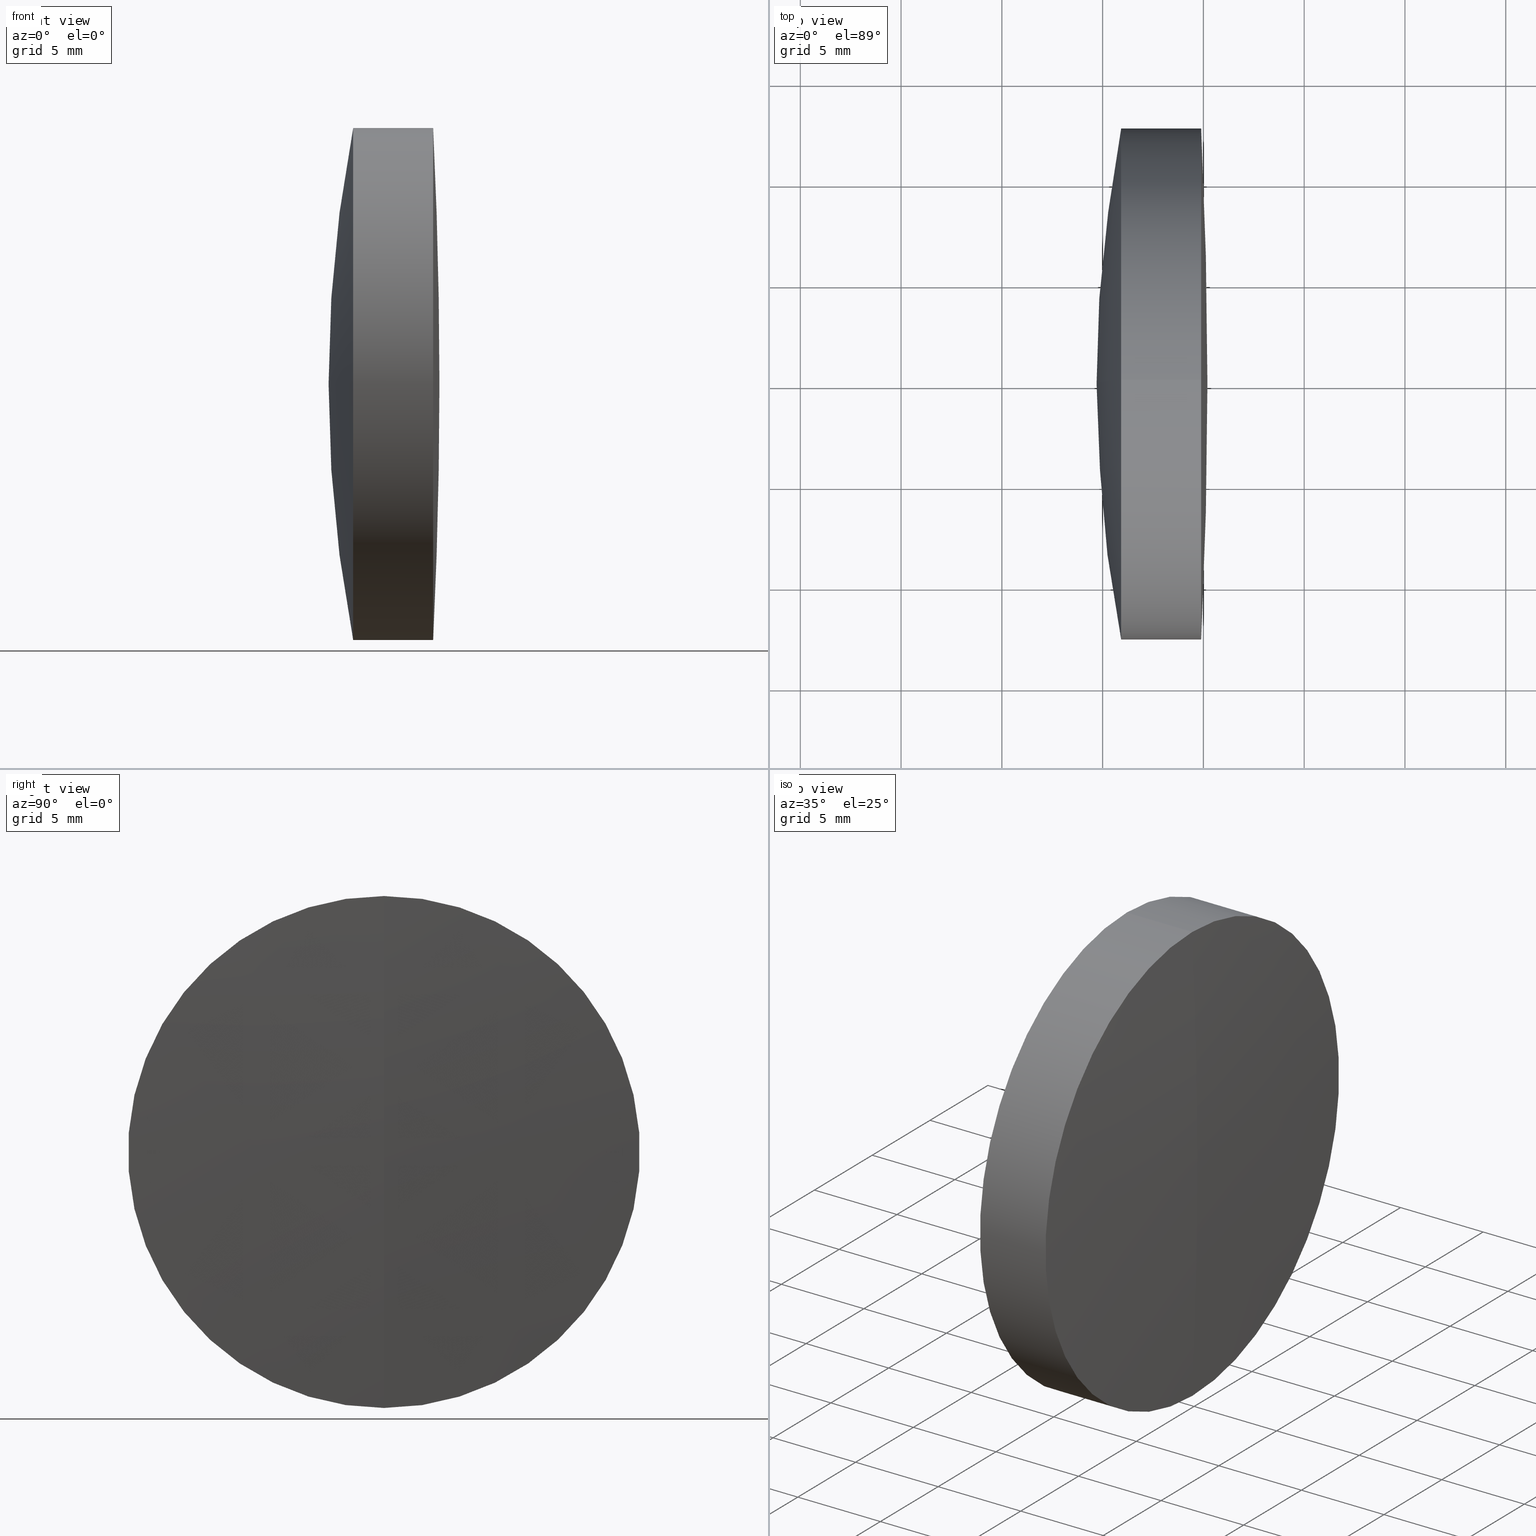
[diagram: canonical four-view strip — front | top / right | iso, engineering-drawing reading convention]
A machine part, canonical four-view strip (front | top / right | iso — engineering-drawing reading convention). The complete STEP part file that produces these views, byte-faithful:
ISO-10303-21;
HEADER;
FILE_DESCRIPTION (( 'STEP AP214' ),
    '1' );
FILE_NAME ('145122.STEP',
    '2019-06-03T02:42:32',
    ( 'user' ),
    ( '΢���й�' ),
    'SwSTEP 2.0',
    'SolidWorks 2016',
    '' );
FILE_SCHEMA (( 'AUTOMOTIVE_DESIGN' ));
ENDSEC;

DATA;
#1 =( NAMED_UNIT ( * ) PLANE_ANGLE_UNIT ( ) SI_UNIT ( $, .RADIAN. ) );
#2 = SPHERICAL_SURFACE ( 'NONE', #199, 66.67999999999999300 ) ;
#3 = SURFACE_STYLE_USAGE ( .BOTH. , #324 ) ;
#4 = SURFACE_SIDE_STYLE ('',( #178 ) ) ;
#5 = FILL_AREA_STYLE_COLOUR ( '', #17 ) ;
#6 = ORIENTED_EDGE ( 'NONE', *, *, #222, .F. ) ;
#7 = CARTESIAN_POINT ( 'NONE',  ( 45.79012593811276600, 0.0000000000000000000, 0.0000000000000000000 ) ) ;
#8 = EDGE_CURVE ( 'NONE', #9, #41, #281, .T. ) ;
#9 = VERTEX_POINT ( 'NONE', #212 ) ;
#10 = CARTESIAN_POINT ( 'NONE',  ( 45.79012593811276600, 0.0000000000000000000, 0.0000000000000000000 ) ) ;
#11 = CARTESIAN_POINT ( 'NONE',  ( 250.0001259381127700, 0.0000000000000000000, 6.763720156497999700E-015 ) ) ;
#12 = CIRCLE ( 'NONE', #332, 12.70000000000000600 ) ;
#13 = APPLICATION_PROTOCOL_DEFINITION ( 'draft international standard', 'automotive_design', 1998, #305 ) ;
#14 = DIRECTION ( 'NONE',  ( 0.0000000000000000000, -1.224646799147353200E-016, 1.000000000000000000 ) ) ;
#15 = DIRECTION ( 'NONE',  ( 0.0000000000000000000, 0.0000000000000000000, 1.000000000000000000 ) ) ;
#16 = DIRECTION ( 'NONE',  ( 0.0000000000000000000, 0.0000000000000000000, 1.000000000000000000 ) ) ;
#17 = COLOUR_RGB ( '',1.000000000000000000, 1.000000000000000000, 1.000000000000000000 ) ;
#18 = STYLED_ITEM ( 'NONE', ( #290 ), #308 ) ;
#19 = CIRCLE ( 'NONE', #162, 12.70000000000000600 ) ;
#20 = ADVANCED_FACE ( 'NONE', ( #84 ), #298, .F. ) ;
#21 = EDGE_CURVE ( 'NONE', #191, #80, #323, .T. ) ;
#22 = CARTESIAN_POINT ( 'NONE',  ( 303.7001259381128200, 0.0000000000000000000, 1.005189681220864300E-014 ) ) ;
#23 = ADVANCED_FACE ( 'NONE', ( #91 ), #252, .T. ) ;
#24 = DIRECTION ( 'NONE',  ( -1.000000000000000000, -0.0000000000000000000, -0.0000000000000000000 ) ) ;
#25 = FACE_OUTER_BOUND ( 'NONE', #94, .T. ) ;
#26 = DIRECTION ( 'NONE',  ( 0.0000000000000000000, -1.000000000000000000, 0.0000000000000000000 ) ) ;
#27 = UNCERTAINTY_MEASURE_WITH_UNIT (LENGTH_MEASURE( 1.000000000000000100E-005 ), #103, 'distance_accuracy_value', 'NONE');
#28 = DIRECTION ( 'NONE',  ( 0.0000000000000000000, 0.0000000000000000000, 1.000000000000000000 ) ) ;
#29 = ORIENTED_EDGE ( 'NONE', *, *, #202, .T. ) ;
#30 = DIRECTION ( 'NONE',  ( 0.0000000000000000000, -1.224646799147353200E-016, 1.000000000000000000 ) ) ;
#31 = DIRECTION ( 'NONE',  ( 0.0000000000000000000, 0.0000000000000000000, -1.000000000000000000 ) ) ;
#32 = VERTEX_POINT ( 'NONE', #22 ) ;
#33 = DIRECTION ( 'NONE',  ( 0.0000000000000000000, 1.000000000000000000, 0.0000000000000000000 ) ) ;
#34 = EDGE_LOOP ( 'NONE', ( #223, #261, #69 ) ) ;
#35 = CIRCLE ( 'NONE', #297, 12.70000000000000600 ) ;
#36 = PRESENTATION_LAYER_ASSIGNMENT (  '', '', ( #18 ) ) ;
#37 = VERTEX_POINT ( 'NONE', #98 ) ;
#38 = CARTESIAN_POINT ( 'NONE',  ( 299.7001259381128200, 0.0000000000000000000, 2.776124129692395000E-015 ) ) ;
#39 = CARTESIAN_POINT ( 'NONE',  ( 302.1767490561337600, 0.0000000000000000000, 12.70000000000000600 ) ) ;
#40 = EDGE_CURVE ( 'NONE', #201, #286, #165, .T. ) ;
#41 = VERTEX_POINT ( 'NONE', #43 ) ;
#42 = ADVANCED_FACE ( 'NONE', ( #122 ), #2, .T. ) ;
#43 = CARTESIAN_POINT ( 'NONE',  ( 304.8890609031180400, 1.555301434917140200E-015, -12.70000000000001000 ) ) ;
#44 = MANIFOLD_SOLID_BREP ( '��ת1', #313 ) ;
#45 = MECHANICAL_DESIGN_GEOMETRIC_PRESENTATION_REPRESENTATION (  '', ( #18 ), #64 ) ;
#46 = SURFACE_SIDE_STYLE ('',( #255 ) ) ;
#47 =( LENGTH_UNIT ( ) NAMED_UNIT ( * ) SI_UNIT ( .MILLI., .METRE. ) );
#48 = ORIENTED_EDGE ( 'NONE', *, *, #153, .F. ) ;
#49 = CARTESIAN_POINT ( 'NONE',  ( 366.3801259381128300, 0.0000000000000000000, 6.859096558049670400E-015 ) ) ;
#50 = PRESENTATION_STYLE_ASSIGNMENT (( #185 ) ) ;
#51 =( NAMED_UNIT ( * ) PLANE_ANGLE_UNIT ( ) SI_UNIT ( $, .RADIAN. ) );
#52 = CARTESIAN_POINT ( 'NONE',  ( -0.5519199926577972300, 1.555301434917141000E-015, -12.70000000000002100 ) ) ;
#53 = EDGE_CURVE ( 'NONE', #264, #286, #265, .T. ) ;
#54 = CARTESIAN_POINT ( 'NONE',  ( 250.0001259381127700, 0.0000000000000000000, 6.763720156497999700E-015 ) ) ;
#55 = DIRECTION ( 'NONE',  ( 0.0000000000000000000, 1.000000000000000000, 0.0000000000000000000 ) ) ;
#56 = CARTESIAN_POINT ( 'NONE',  ( 304.8890609031180400, 0.0000000000000000000, 12.70000000000001000 ) ) ;
#57 = EDGE_LOOP ( 'NONE', ( #105, #288, #224 ) ) ;
#58 = DIRECTION ( 'NONE',  ( -1.000000000000000000, -0.0000000000000000000, -0.0000000000000000000 ) ) ;
#59 = CYLINDRICAL_SURFACE ( 'NONE', #130, 12.70000000000000600 ) ;
#60 = FILL_AREA_STYLE ('',( #253 ) ) ;
#61 = ORIENTED_EDGE ( 'NONE', *, *, #53, .T. ) ;
#62 = ORIENTED_EDGE ( 'NONE', *, *, #172, .T. ) ;
#63 = PRODUCT_DEFINITION_CONTEXT ( 'detailed design', #303, 'design' ) ;
#64 =( GEOMETRIC_REPRESENTATION_CONTEXT ( 3 ) GLOBAL_UNCERTAINTY_ASSIGNED_CONTEXT ( ( #337 ) ) GLOBAL_UNIT_ASSIGNED_CONTEXT ( ( #208, #292, #135 ) ) REPRESENTATION_CONTEXT ( 'NONE', 'WORKASPACE' ) );
#65 = ORIENTED_EDGE ( 'NONE', *, *, #71, .T. ) ;
#66 = SPHERICAL_SURFACE ( 'NONE', #181, 53.69999999999999600 ) ;
#67 = CARTESIAN_POINT ( 'NONE',  ( -0.5519199926577972300, 0.0000000000000000000, 0.0000000000000000000 ) ) ;
#68 =( LENGTH_UNIT ( ) NAMED_UNIT ( * ) SI_UNIT ( .MILLI., .METRE. ) );
#69 = ORIENTED_EDGE ( 'NONE', *, *, #21, .T. ) ;
#70 = AXIS2_PLACEMENT_3D ( 'NONE', #104, #302, #346 ) ;
#71 = EDGE_CURVE ( 'NONE', #41, #274, #241, .T. ) ;
#72 = ADVANCED_FACE ( 'NONE', ( #171 ), #59, .T. ) ;
#73 = DIRECTION ( 'NONE',  ( -1.000000000000000000, -0.0000000000000000000, -0.0000000000000000000 ) ) ;
#74 = SHAPE_DEFINITION_REPRESENTATION ( #216, #176 ) ;
#75 = PRODUCT_CONTEXT ( 'NONE', #305, 'mechanical' ) ;
#76 = ORIENTED_EDGE ( 'NONE', *, *, #117, .F. ) ;
#77 = ORIENTED_EDGE ( 'NONE', *, *, #138, .F. ) ;
#78 = DIRECTION ( 'NONE',  ( 0.0000000000000000000, 1.000000000000000000, -0.0000000000000000000 ) ) ;
#79 = CARTESIAN_POINT ( 'NONE',  ( 302.1767490561337600, 1.555301434917139200E-015, -12.70000000000000600 ) ) ;
#80 = VERTEX_POINT ( 'NONE', #101 ) ;
#81 = EDGE_CURVE ( 'NONE', #32, #191, #341, .T. ) ;
#82 = DIRECTION ( 'NONE',  ( -1.000000000000000000, -0.0000000000000000000, -0.0000000000000000000 ) ) ;
#83 = DIRECTION ( 'NONE',  ( 0.0000000000000000000, 0.0000000000000000000, -1.000000000000000000 ) ) ;
#84 = FACE_OUTER_BOUND ( 'NONE', #57, .T. ) ;
#85 = AXIS2_PLACEMENT_3D ( 'NONE', #267, #96, #262 ) ;
#86 = DIRECTION ( 'NONE',  ( -1.000000000000000000, -0.0000000000000000000, -0.0000000000000000000 ) ) ;
#87 = FACE_OUTER_BOUND ( 'NONE', #329, .T. ) ;
#88 = SPHERICAL_SURFACE ( 'NONE', #257, 53.69999999999999600 ) ;
#89 = AXIS2_PLACEMENT_3D ( 'NONE', #243, #82, #275 ) ;
#90 = AXIS2_PLACEMENT_3D ( 'NONE', #7, #186, #30 ) ;
#91 = FACE_OUTER_BOUND ( 'NONE', #149, .T. ) ;
#92 = AXIS2_PLACEMENT_3D ( 'NONE', #301, #299, #269 ) ;
#93 = SURFACE_STYLE_FILL_AREA ( #60 ) ;
#94 = EDGE_LOOP ( 'NONE', ( #48, #65, #100, #318 ) ) ;
#95 = VECTOR ( 'NONE', #214, 1000.000000000000000 ) ;
#96 = DIRECTION ( 'NONE',  ( -0.0000000000000000000, 1.000000000000000000, 1.224646799147353200E-016 ) ) ;
#97 = EDGE_CURVE ( 'NONE', #321, #264, #211, .T. ) ;
#98 = CARTESIAN_POINT ( 'NONE',  ( 303.7001259381128200, 0.0000000000000000000, 1.005189681220864300E-014 ) ) ;
#99 = DIRECTION ( 'NONE',  ( 0.0000000000000000000, 0.0000000000000000000, 1.000000000000000000 ) ) ;
#100 = ORIENTED_EDGE ( 'NONE', *, *, #138, .T. ) ;
#101 = CARTESIAN_POINT ( 'NONE',  ( 302.1767490561337600, 1.555301434917142000E-015, -12.70000000000002200 ) ) ;
#102 = AXIS2_PLACEMENT_3D ( 'NONE', #326, #128, #304 ) ;
#103 =( LENGTH_UNIT ( ) NAMED_UNIT ( * ) SI_UNIT ( .MILLI., .METRE. ) );
#104 = CARTESIAN_POINT ( 'NONE',  ( 304.8890609031180400, 0.0000000000000000000, 0.0000000000000000000 ) ) ;
#105 = ORIENTED_EDGE ( 'NONE', *, *, #81, .F. ) ;
#106 = SURFACE_STYLE_USAGE ( .BOTH. , #46 ) ;
#107 = AXIS2_PLACEMENT_3D ( 'NONE', #238, #26, #31 ) ;
#108 = AXIS2_PLACEMENT_3D ( 'NONE', #231, #73, #205 ) ;
#109 = PRODUCT_DEFINITION ( 'δ֪', '', #133, #63 ) ;
#110 = CARTESIAN_POINT ( 'NONE',  ( 124.5233095260452400, 0.0000000000000000000, 12.70000000000000600 ) ) ;
#111 = ORIENTED_EDGE ( 'NONE', *, *, #40, .F. ) ;
#112 = DIRECTION ( 'NONE',  ( 0.0000000000000000000, 0.0000000000000000000, 1.000000000000000000 ) ) ;
#113 = EDGE_LOOP ( 'NONE', ( #259, #29, #310, #134 ) ) ;
#114 = UNCERTAINTY_MEASURE_WITH_UNIT (LENGTH_MEASURE( 1.000000000000000100E-005 ), #68, 'distance_accuracy_value', 'NONE');
#115 = DIRECTION ( 'NONE',  ( 0.0000000000000000000, 1.000000000000000000, 0.0000000000000000000 ) ) ;
#116 = DIRECTION ( 'NONE',  ( -1.000000000000000000, -0.0000000000000000000, -0.0000000000000000000 ) ) ;
#117 = EDGE_CURVE ( 'NONE', #201, #264, #293, .T. ) ;
#118 = ORIENTED_EDGE ( 'NONE', *, *, #97, .T. ) ;
#119 = PRESENTATION_STYLE_ASSIGNMENT (( #106 ) ) ;
#120 = FACE_OUTER_BOUND ( 'NONE', #232, .T. ) ;
#121 = AXIS2_PLACEMENT_3D ( 'NONE', #159, #219, #16 ) ;
#122 = FACE_OUTER_BOUND ( 'NONE', #200, .T. ) ;
#123 = ORIENTED_EDGE ( 'NONE', *, *, #306, .F. ) ;
#124 = SPHERICAL_SURFACE ( 'NONE', #213, 259.4100000000000300 ) ;
#125 = CARTESIAN_POINT ( 'NONE',  ( -0.5519199926577972300, 0.0000000000000000000, 0.0000000000000000000 ) ) ;
#126 = ORIENTED_EDGE ( 'NONE', *, *, #315, .T. ) ;
#127 = CYLINDRICAL_SURFACE ( 'NONE', #142, 12.70000000000002100 ) ;
#128 = DIRECTION ( 'NONE',  ( 0.0000000000000000000, 1.000000000000000000, 0.0000000000000000000 ) ) ;
#129 = CARTESIAN_POINT ( 'NONE',  ( 366.3801259381128300, 0.0000000000000000000, 6.859096558049670400E-015 ) ) ;
#130 = AXIS2_PLACEMENT_3D ( 'NONE', #155, #239, #270 ) ;
#131 = AXIS2_PLACEMENT_3D ( 'NONE', #273, #327, #320 ) ;
#132 = CARTESIAN_POINT ( 'NONE',  ( 124.5233095260452400, 0.0000000000000000000, 0.0000000000000000000 ) ) ;
#133 = PRODUCT_DEFINITION_FORMATION_WITH_SPECIFIED_SOURCE ( '�κ�', '', #151, .NOT_KNOWN. ) ;
#134 = ORIENTED_EDGE ( 'NONE', *, *, #263, .F. ) ;
#135 =( NAMED_UNIT ( * ) SI_UNIT ( $, .STERADIAN. ) SOLID_ANGLE_UNIT ( ) );
#136 = DIRECTION ( 'NONE',  ( 0.0000000000000000000, 1.224646799147353200E-016, -1.000000000000000000 ) ) ;
#137 = FILL_AREA_STYLE ('',( #5 ) ) ;
#138 = EDGE_CURVE ( 'NONE', #274, #191, #196, .T. ) ;
#139 = EDGE_LOOP ( 'NONE', ( #260, #126, #123 ) ) ;
#140 = DIRECTION ( 'NONE',  ( 0.0000000000000000000, 0.0000000000000000000, -1.000000000000000000 ) ) ;
#141 = EDGE_LOOP ( 'NONE', ( #285, #152, #237, #77 ) ) ;
#142 = AXIS2_PLACEMENT_3D ( 'NONE', #125, #194, #226 ) ;
#143 = SPHERICAL_SURFACE ( 'NONE', #277, 66.67999999999999300 ) ;
#144 = ORIENTED_EDGE ( 'NONE', *, *, #202, .F. ) ;
#145 = COLOUR_RGB ( '',1.000000000000000000, 1.000000000000000000, 1.000000000000000000 ) ;
#146 = AXIS2_PLACEMENT_3D ( 'NONE', #54, #245, #83 ) ;
#147 = AXIS2_PLACEMENT_3D ( 'NONE', #49, #78, #322 ) ;
#148 = PRODUCT_RELATED_PRODUCT_CATEGORY ( 'part', '', ( #151 ) ) ;
#149 = EDGE_LOOP ( 'NONE', ( #203, #118, #76, #210 ) ) ;
#150 = FACE_OUTER_BOUND ( 'NONE', #139, .T. ) ;
#151 = PRODUCT ( '145122', '145122', '', ( #75 ) ) ;
#152 = ORIENTED_EDGE ( 'NONE', *, *, #153, .T. ) ;
#153 = EDGE_CURVE ( 'NONE', #41, #80, #167, .T. ) ;
#154 = DIRECTION ( 'NONE',  ( -1.000000000000000000, -0.0000000000000000000, -0.0000000000000000000 ) ) ;
#155 = CARTESIAN_POINT ( 'NONE',  ( 124.5233095260452400, 0.0000000000000000000, 0.0000000000000000000 ) ) ;
#156 =( GEOMETRIC_REPRESENTATION_CONTEXT ( 3 ) GLOBAL_UNCERTAINTY_ASSIGNED_CONTEXT ( ( #114 ) ) GLOBAL_UNIT_ASSIGNED_CONTEXT ( ( #68, #51, #160 ) ) REPRESENTATION_CONTEXT ( 'NONE', 'WORKASPACE' ) );
#157 =( NAMED_UNIT ( * ) SI_UNIT ( $, .STERADIAN. ) SOLID_ANGLE_UNIT ( ) );
#158 = FILL_AREA_STYLE ('',( #317 ) ) ;
#159 = CARTESIAN_POINT ( 'NONE',  ( 304.8890609031180400, 0.0000000000000000000, 0.0000000000000000000 ) ) ;
#160 =( NAMED_UNIT ( * ) SI_UNIT ( $, .STERADIAN. ) SOLID_ANGLE_UNIT ( ) );
#161 = DIRECTION ( 'NONE',  ( -1.000000000000000000, -0.0000000000000000000, -0.0000000000000000000 ) ) ;
#162 = AXIS2_PLACEMENT_3D ( 'NONE', #248, #86, #280 ) ;
#163 = CARTESIAN_POINT ( 'NONE',  ( 250.0001259381127700, 0.0000000000000000000, 6.763720156497999700E-015 ) ) ;
#164 = AXIS2_PLACEMENT_3D ( 'NONE', #129, #300, #136 ) ;
#165 = CIRCLE ( 'NONE', #164, 66.67999999999999300 ) ;
#166 = CARTESIAN_POINT ( 'NONE',  ( 300.9207308904956900, -1.555301434917137800E-015, 12.69999999999999900 ) ) ;
#167 = LINE ( 'NONE', #52, #314 ) ;
#168 = DIRECTION ( 'NONE',  ( -0.0000000000000000000, -1.000000000000000000, -0.0000000000000000000 ) ) ;
#169 = DIRECTION ( 'NONE',  ( -0.0000000000000000000, 1.000000000000000000, 1.224646799147353200E-016 ) ) ;
#170 = DIRECTION ( 'NONE',  ( -1.000000000000000000, -0.0000000000000000000, -0.0000000000000000000 ) ) ;
#171 = FACE_OUTER_BOUND ( 'NONE', #113, .T. ) ;
#172 = EDGE_CURVE ( 'NONE', #37, #309, #336, .T. ) ;
#173 = SPHERICAL_SURFACE ( 'NONE', #102, 53.69999999999999600 ) ;
#174 = ORIENTED_EDGE ( 'NONE', *, *, #263, .T. ) ;
#175 = AXIS2_PLACEMENT_3D ( 'NONE', #67, #345, #28 ) ;
#176 = ADVANCED_BREP_SHAPE_REPRESENTATION ( '145122', ( #44, #308, #92 ), #156 ) ;
#177 = EDGE_LOOP ( 'NONE', ( #6, #244, #197 ) ) ;
#178 = SURFACE_STYLE_FILL_AREA ( #158 ) ;
#179 = ADVANCED_FACE ( 'NONE', ( #150 ), #66, .T. ) ;
#180 = CARTESIAN_POINT ( 'NONE',  ( 366.3801259381128300, 0.0000000000000000000, 6.859096558049670400E-015 ) ) ;
#181 = AXIS2_PLACEMENT_3D ( 'NONE', #163, #33, #278 ) ;
#182 = AXIS2_PLACEMENT_3D ( 'NONE', #132, #154, #99 ) ;
#183 = DIRECTION ( 'NONE',  ( -1.000000000000000000, -0.0000000000000000000, -0.0000000000000000000 ) ) ;
#184 = ORIENTED_EDGE ( 'NONE', *, *, #8, .F. ) ;
#185 = SURFACE_STYLE_USAGE ( .BOTH. , #4 ) ;
#186 = DIRECTION ( 'NONE',  ( -0.0000000000000000000, 1.000000000000000000, 1.224646799147353200E-016 ) ) ;
#187 = EDGE_CURVE ( 'NONE', #309, #201, #220, .T. ) ;
#188 = FACE_OUTER_BOUND ( 'NONE', #141, .T. ) ;
#189 = DIRECTION ( 'NONE',  ( 0.0000000000000000000, 1.000000000000000000, 0.0000000000000000000 ) ) ;
#190 = CARTESIAN_POINT ( 'NONE',  ( 45.79012593811276600, 0.0000000000000000000, 0.0000000000000000000 ) ) ;
#191 = VERTEX_POINT ( 'NONE', #333 ) ;
#192 = VECTOR ( 'NONE', #24, 1000.000000000000000 ) ;
#193 = DIRECTION ( 'NONE',  ( 0.0000000000000000000, 0.0000000000000000000, 1.000000000000000000 ) ) ;
#194 = DIRECTION ( 'NONE',  ( -1.000000000000000000, -0.0000000000000000000, -0.0000000000000000000 ) ) ;
#195 = CIRCLE ( 'NONE', #85, 53.69999999999999600 ) ;
#196 = LINE ( 'NONE', #328, #276 ) ;
#197 = ORIENTED_EDGE ( 'NONE', *, *, #338, .F. ) ;
#198 = AXIS2_PLACEMENT_3D ( 'NONE', #190, #307, #140 ) ;
#199 = AXIS2_PLACEMENT_3D ( 'NONE', #180, #294, #325 ) ;
#200 = EDGE_LOOP ( 'NONE', ( #174, #342, #339 ) ) ;
#201 = VERTEX_POINT ( 'NONE', #166 ) ;
#202 = EDGE_CURVE ( 'NONE', #321, #309, #19, .T. ) ;
#203 = ORIENTED_EDGE ( 'NONE', *, *, #306, .T. ) ;
#204 = ADVANCED_FACE ( 'NONE', ( #120 ), #124, .T. ) ;
#205 = DIRECTION ( 'NONE',  ( 0.0000000000000000000, 0.0000000000000000000, 1.000000000000000000 ) ) ;
#206 = STYLED_ITEM ( 'NONE', ( #119 ), #176 ) ;
#207 = COLOUR_RGB ( '',1.000000000000000000, 1.000000000000000000, 1.000000000000000000 ) ;
#208 =( LENGTH_UNIT ( ) NAMED_UNIT ( * ) SI_UNIT ( .MILLI., .METRE. ) );
#209 = APPLICATION_PROTOCOL_DEFINITION ( 'draft international standard', 'automotive_design', 1998, #303 ) ;
#210 = ORIENTED_EDGE ( 'NONE', *, *, #187, .F. ) ;
#211 = LINE ( 'NONE', #236, #192 ) ;
#212 = CARTESIAN_POINT ( 'NONE',  ( 305.2001259381128200, 0.0000000000000000000, 1.588428130834074600E-014 ) ) ;
#213 = AXIS2_PLACEMENT_3D ( 'NONE', #10, #55, #112 ) ;
#214 = DIRECTION ( 'NONE',  ( -1.000000000000000000, -0.0000000000000000000, -0.0000000000000000000 ) ) ;
#215 = STYLED_ITEM ( 'NONE', ( #50 ), #44 ) ;
#216 = PRODUCT_DEFINITION_SHAPE ( 'NONE', 'NONE',  #109 ) ;
#217 = CIRCLE ( 'NONE', #121, 12.70000000000001000 ) ;
#218 = CARTESIAN_POINT ( 'NONE',  ( 366.3801259381128300, 0.0000000000000000000, 6.859096558049670400E-015 ) ) ;
#219 = DIRECTION ( 'NONE',  ( -1.000000000000000000, -0.0000000000000000000, -0.0000000000000000000 ) ) ;
#220 = LINE ( 'NONE', #110, #95 ) ;
#221 = CARTESIAN_POINT ( 'NONE',  ( 300.9207308904956900, 0.0000000000000000000, 0.0000000000000000000 ) ) ;
#222 = EDGE_CURVE ( 'NONE', #9, #274, #228, .T. ) ;
#223 = ORIENTED_EDGE ( 'NONE', *, *, #242, .F. ) ;
#224 = ORIENTED_EDGE ( 'NONE', *, *, #287, .T. ) ;
#225 = PRESENTATION_LAYER_ASSIGNMENT (  '', '', ( #206 ) ) ;
#226 = DIRECTION ( 'NONE',  ( 0.0000000000000000000, 0.0000000000000000000, 1.000000000000000000 ) ) ;
#227 = UNCERTAINTY_MEASURE_WITH_UNIT (LENGTH_MEASURE( 1.000000000000000100E-005 ), #47, 'distance_accuracy_value', 'NONE');
#228 = CIRCLE ( 'NONE', #198, 259.4100000000000300 ) ;
#229 = ADVANCED_FACE ( 'NONE', ( #291 ), #88, .F. ) ;
#230 = DIRECTION ( 'NONE',  ( 0.0000000000000000000, 0.0000000000000000000, 1.000000000000000000 ) ) ;
#231 = CARTESIAN_POINT ( 'NONE',  ( 302.1767490561337600, 0.0000000000000000000, 0.0000000000000000000 ) ) ;
#232 = EDGE_LOOP ( 'NONE', ( #184, #266, #272 ) ) ;
#233 = AXIS2_PLACEMENT_3D ( 'NONE', #334, #169, #14 ) ;
#234 = PRESENTATION_LAYER_ASSIGNMENT (  '', '', ( #215 ) ) ;
#235 = ADVANCED_FACE ( 'NONE', ( #256 ), #143, .T. ) ;
#236 = CARTESIAN_POINT ( 'NONE',  ( 124.5233095260452400, 1.555301434917139200E-015, -12.70000000000000600 ) ) ;
#237 = ORIENTED_EDGE ( 'NONE', *, *, #21, .F. ) ;
#238 = CARTESIAN_POINT ( 'NONE',  ( 250.0001259381127700, 0.0000000000000000000, 6.763720156497999700E-015 ) ) ;
#239 = DIRECTION ( 'NONE',  ( -1.000000000000000000, -0.0000000000000000000, -0.0000000000000000000 ) ) ;
#240 =( NAMED_UNIT ( * ) PLANE_ANGLE_UNIT ( ) SI_UNIT ( $, .RADIAN. ) );
#241 = CIRCLE ( 'NONE', #70, 12.70000000000001000 ) ;
#242 = EDGE_CURVE ( 'NONE', #32, #80, #340, .T. ) ;
#243 = CARTESIAN_POINT ( 'NONE',  ( 300.9207308904956900, 0.0000000000000000000, 0.0000000000000000000 ) ) ;
#244 = ORIENTED_EDGE ( 'NONE', *, *, #8, .T. ) ;
#245 = DIRECTION ( 'NONE',  ( 0.0000000000000000000, -1.000000000000000000, 0.0000000000000000000 ) ) ;
#246 = SPHERICAL_SURFACE ( 'NONE', #347, 259.4100000000000300 ) ;
#247 = EDGE_LOOP ( 'NONE', ( #111, #254, #61 ) ) ;
#248 = CARTESIAN_POINT ( 'NONE',  ( 302.1767490561337600, 0.0000000000000000000, 0.0000000000000000000 ) ) ;
#249 = MECHANICAL_DESIGN_GEOMETRIC_PRESENTATION_REPRESENTATION (  '', ( #206 ), #271 ) ;
#250 = DIRECTION ( 'NONE',  ( 0.0000000000000000000, 0.0000000000000000000, -1.000000000000000000 ) ) ;
#251 = DIRECTION ( 'NONE',  ( 0.0000000000000000000, 0.0000000000000000000, 1.000000000000000000 ) ) ;
#252 = CYLINDRICAL_SURFACE ( 'NONE', #182, 12.70000000000000600 ) ;
#253 = FILL_AREA_STYLE_COLOUR ( '', #207 ) ;
#254 = ORIENTED_EDGE ( 'NONE', *, *, #117, .T. ) ;
#255 = SURFACE_STYLE_FILL_AREA ( #137 ) ;
#256 = FACE_OUTER_BOUND ( 'NONE', #247, .T. ) ;
#257 = AXIS2_PLACEMENT_3D ( 'NONE', #11, #189, #330 ) ;
#258 = MECHANICAL_DESIGN_GEOMETRIC_PRESENTATION_REPRESENTATION (  '', ( #215 ), #279 ) ;
#259 = ORIENTED_EDGE ( 'NONE', *, *, #97, .F. ) ;
#260 = ORIENTED_EDGE ( 'NONE', *, *, #172, .F. ) ;
#261 = ORIENTED_EDGE ( 'NONE', *, *, #81, .T. ) ;
#262 = DIRECTION ( 'NONE',  ( 0.0000000000000000000, -1.224646799147353200E-016, 1.000000000000000000 ) ) ;
#263 = EDGE_CURVE ( 'NONE', #264, #201, #35, .T. ) ;
#264 = VERTEX_POINT ( 'NONE', #282 ) ;
#265 = CIRCLE ( 'NONE', #147, 66.67999999999999300 ) ;
#266 = ORIENTED_EDGE ( 'NONE', *, *, #222, .T. ) ;
#267 = CARTESIAN_POINT ( 'NONE',  ( 250.0001259381127700, 0.0000000000000000000, 6.763720156497999700E-015 ) ) ;
#268 = CYLINDRICAL_SURFACE ( 'NONE', #175, 12.70000000000002100 ) ;
#269 = DIRECTION ( 'NONE',  ( 1.000000000000000000, 0.0000000000000000000, 0.0000000000000000000 ) ) ;
#270 = DIRECTION ( 'NONE',  ( 0.0000000000000000000, 0.0000000000000000000, 1.000000000000000000 ) ) ;
#271 =( GEOMETRIC_REPRESENTATION_CONTEXT ( 3 ) GLOBAL_UNCERTAINTY_ASSIGNED_CONTEXT ( ( #27 ) ) GLOBAL_UNIT_ASSIGNED_CONTEXT ( ( #103, #240, #296 ) ) REPRESENTATION_CONTEXT ( 'NONE', 'WORKASPACE' ) );
#272 = ORIENTED_EDGE ( 'NONE', *, *, #71, .F. ) ;
#273 = CARTESIAN_POINT ( 'NONE',  ( 250.0001259381127700, 0.0000000000000000000, 6.763720156497999700E-015 ) ) ;
#274 = VERTEX_POINT ( 'NONE', #56 ) ;
#275 = DIRECTION ( 'NONE',  ( 0.0000000000000000000, 0.0000000000000000000, 1.000000000000000000 ) ) ;
#276 = VECTOR ( 'NONE', #161, 1000.000000000000000 ) ;
#277 = AXIS2_PLACEMENT_3D ( 'NONE', #218, #168, #250 ) ;
#278 = DIRECTION ( 'NONE',  ( 0.0000000000000000000, 0.0000000000000000000, 1.000000000000000000 ) ) ;
#279 =( GEOMETRIC_REPRESENTATION_CONTEXT ( 3 ) GLOBAL_UNCERTAINTY_ASSIGNED_CONTEXT ( ( #227 ) ) GLOBAL_UNIT_ASSIGNED_CONTEXT ( ( #47, #1, #157 ) ) REPRESENTATION_CONTEXT ( 'NONE', 'WORKASPACE' ) );
#280 = DIRECTION ( 'NONE',  ( 0.0000000000000000000, 0.0000000000000000000, 1.000000000000000000 ) ) ;
#281 = CIRCLE ( 'NONE', #90, 259.4100000000000300 ) ;
#282 = CARTESIAN_POINT ( 'NONE',  ( 300.9207308904956900, 0.0000000000000000000, -12.69999999999999200 ) ) ;
#283 = CARTESIAN_POINT ( 'NONE',  ( 45.79012593811276600, 0.0000000000000000000, 0.0000000000000000000 ) ) ;
#284 = CARTESIAN_POINT ( 'NONE',  ( 302.1767490561337600, 0.0000000000000000000, 0.0000000000000000000 ) ) ;
#285 = ORIENTED_EDGE ( 'NONE', *, *, #338, .T. ) ;
#286 = VERTEX_POINT ( 'NONE', #38 ) ;
#287 = EDGE_CURVE ( 'NONE', #80, #191, #319, .T. ) ;
#288 = ORIENTED_EDGE ( 'NONE', *, *, #242, .T. ) ;
#289 = ORIENTED_EDGE ( 'NONE', *, *, #315, .F. ) ;
#290 = PRESENTATION_STYLE_ASSIGNMENT (( #3 ) ) ;
#291 = FACE_OUTER_BOUND ( 'NONE', #34, .T. ) ;
#292 =( NAMED_UNIT ( * ) PLANE_ANGLE_UNIT ( ) SI_UNIT ( $, .RADIAN. ) );
#293 = CIRCLE ( 'NONE', #89, 12.70000000000000600 ) ;
#294 = DIRECTION ( 'NONE',  ( -0.0000000000000000000, -1.000000000000000000, -0.0000000000000000000 ) ) ;
#295 = ADVANCED_FACE ( 'NONE', ( #312 ), #246, .T. ) ;
#296 =( NAMED_UNIT ( * ) SI_UNIT ( $, .STERADIAN. ) SOLID_ANGLE_UNIT ( ) );
#297 = AXIS2_PLACEMENT_3D ( 'NONE', #221, #58, #251 ) ;
#298 = SPHERICAL_SURFACE ( 'NONE', #131, 53.69999999999999600 ) ;
#299 = DIRECTION ( 'NONE',  ( 0.0000000000000000000, 0.0000000000000000000, 1.000000000000000000 ) ) ;
#300 = DIRECTION ( 'NONE',  ( 0.0000000000000000000, -1.000000000000000000, -1.224646799147353200E-016 ) ) ;
#301 = CARTESIAN_POINT ( 'NONE',  ( 0.0000000000000000000, 0.0000000000000000000, 0.0000000000000000000 ) ) ;
#302 = DIRECTION ( 'NONE',  ( -1.000000000000000000, -0.0000000000000000000, -0.0000000000000000000 ) ) ;
#303 = APPLICATION_CONTEXT ( 'automotive_design' ) ;
#304 = DIRECTION ( 'NONE',  ( 0.0000000000000000000, 0.0000000000000000000, 1.000000000000000000 ) ) ;
#305 = APPLICATION_CONTEXT ( 'automotive_design' ) ;
#306 = EDGE_CURVE ( 'NONE', #309, #321, #12, .T. ) ;
#307 = DIRECTION ( 'NONE',  ( 0.0000000000000000000, -1.000000000000000000, 0.0000000000000000000 ) ) ;
#308 = MANIFOLD_SOLID_BREP ( '��ת3', #331 ) ;
#309 = VERTEX_POINT ( 'NONE', #39 ) ;
#310 = ORIENTED_EDGE ( 'NONE', *, *, #187, .T. ) ;
#311 = AXIS2_PLACEMENT_3D ( 'NONE', #335, #170, #15 ) ;
#312 = FACE_OUTER_BOUND ( 'NONE', #177, .T. ) ;
#313 = CLOSED_SHELL ( 'NONE', ( #179, #23, #42, #235, #72, #344 ) ) ;
#314 = VECTOR ( 'NONE', #183, 1000.000000000000000 ) ;
#315 = EDGE_CURVE ( 'NONE', #37, #321, #195, .T. ) ;
#316 = ADVANCED_FACE ( 'NONE', ( #188 ), #127, .T. ) ;
#317 = FILL_AREA_STYLE_COLOUR ( '', #145 ) ;
#318 = ORIENTED_EDGE ( 'NONE', *, *, #287, .F. ) ;
#319 = CIRCLE ( 'NONE', #311, 12.70000000000003100 ) ;
#320 = DIRECTION ( 'NONE',  ( 0.0000000000000000000, 0.0000000000000000000, 1.000000000000000000 ) ) ;
#321 = VERTEX_POINT ( 'NONE', #79 ) ;
#322 = DIRECTION ( 'NONE',  ( 0.0000000000000000000, 0.0000000000000000000, 1.000000000000000000 ) ) ;
#323 = CIRCLE ( 'NONE', #108, 12.70000000000003100 ) ;
#324 = SURFACE_SIDE_STYLE ('',( #93 ) ) ;
#325 = DIRECTION ( 'NONE',  ( 0.0000000000000000000, 0.0000000000000000000, -1.000000000000000000 ) ) ;
#326 = CARTESIAN_POINT ( 'NONE',  ( 250.0001259381127700, 0.0000000000000000000, 6.763720156497999700E-015 ) ) ;
#327 = DIRECTION ( 'NONE',  ( 0.0000000000000000000, 1.000000000000000000, 0.0000000000000000000 ) ) ;
#328 = CARTESIAN_POINT ( 'NONE',  ( -0.5519199926577972300, 0.0000000000000000000, 12.70000000000002100 ) ) ;
#329 = EDGE_LOOP ( 'NONE', ( #289, #62, #144 ) ) ;
#330 = DIRECTION ( 'NONE',  ( 0.0000000000000000000, 0.0000000000000000000, 1.000000000000000000 ) ) ;
#331 = CLOSED_SHELL ( 'NONE', ( #295, #316, #20, #229, #343, #204 ) ) ;
#332 = AXIS2_PLACEMENT_3D ( 'NONE', #284, #116, #230 ) ;
#333 = CARTESIAN_POINT ( 'NONE',  ( 302.1767490561337600, 0.0000000000000000000, 12.70000000000002900 ) ) ;
#334 = CARTESIAN_POINT ( 'NONE',  ( 250.0001259381127700, 0.0000000000000000000, 6.763720156497999700E-015 ) ) ;
#335 = CARTESIAN_POINT ( 'NONE',  ( 302.1767490561337600, 0.0000000000000000000, 0.0000000000000000000 ) ) ;
#336 = CIRCLE ( 'NONE', #146, 53.69999999999999600 ) ;
#337 = UNCERTAINTY_MEASURE_WITH_UNIT (LENGTH_MEASURE( 1.000000000000000100E-005 ), #208, 'distance_accuracy_value', 'NONE');
#338 = EDGE_CURVE ( 'NONE', #274, #41, #217, .T. ) ;
#339 = ORIENTED_EDGE ( 'NONE', *, *, #53, .F. ) ;
#340 = CIRCLE ( 'NONE', #233, 53.69999999999999600 ) ;
#341 = CIRCLE ( 'NONE', #107, 53.69999999999999600 ) ;
#342 = ORIENTED_EDGE ( 'NONE', *, *, #40, .T. ) ;
#343 = ADVANCED_FACE ( 'NONE', ( #25 ), #268, .T. ) ;
#344 = ADVANCED_FACE ( 'NONE', ( #87 ), #173, .T. ) ;
#345 = DIRECTION ( 'NONE',  ( -1.000000000000000000, -0.0000000000000000000, -0.0000000000000000000 ) ) ;
#346 = DIRECTION ( 'NONE',  ( 0.0000000000000000000, 0.0000000000000000000, 1.000000000000000000 ) ) ;
#347 = AXIS2_PLACEMENT_3D ( 'NONE', #283, #115, #193 ) ;
ENDSEC;
END-ISO-10303-21;
